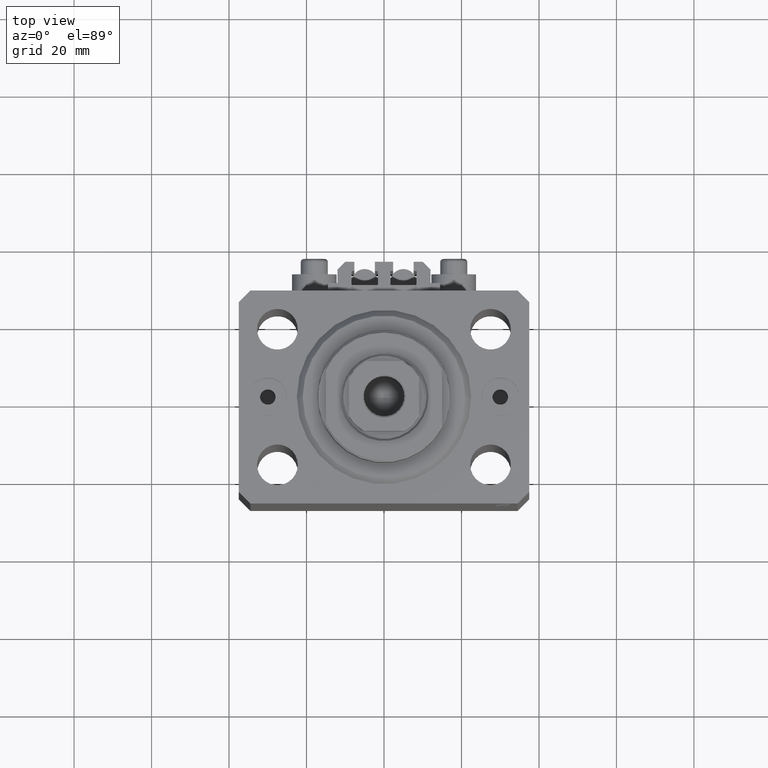
[diagram: clean part render]
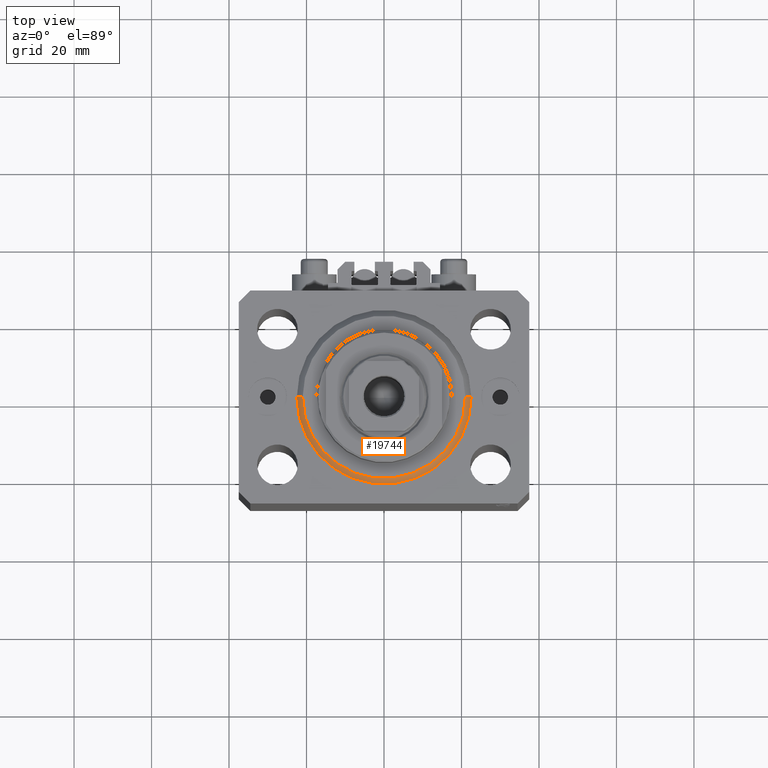
[diagram: same view with one face highlighted and labeled with its STEP entity id]
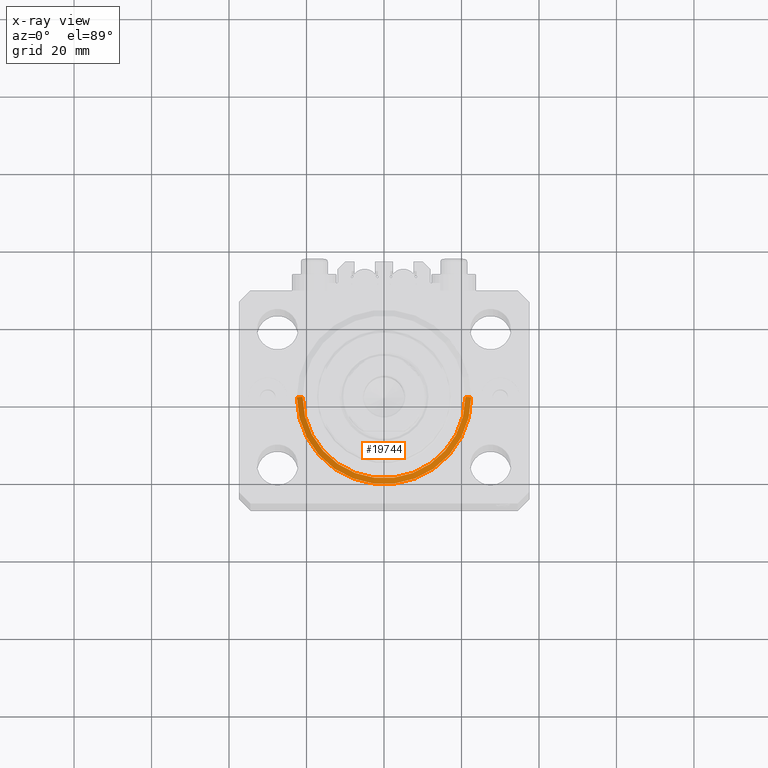
[diagram: x-ray of the same camera — body ghosted, the highlighted face saturated]
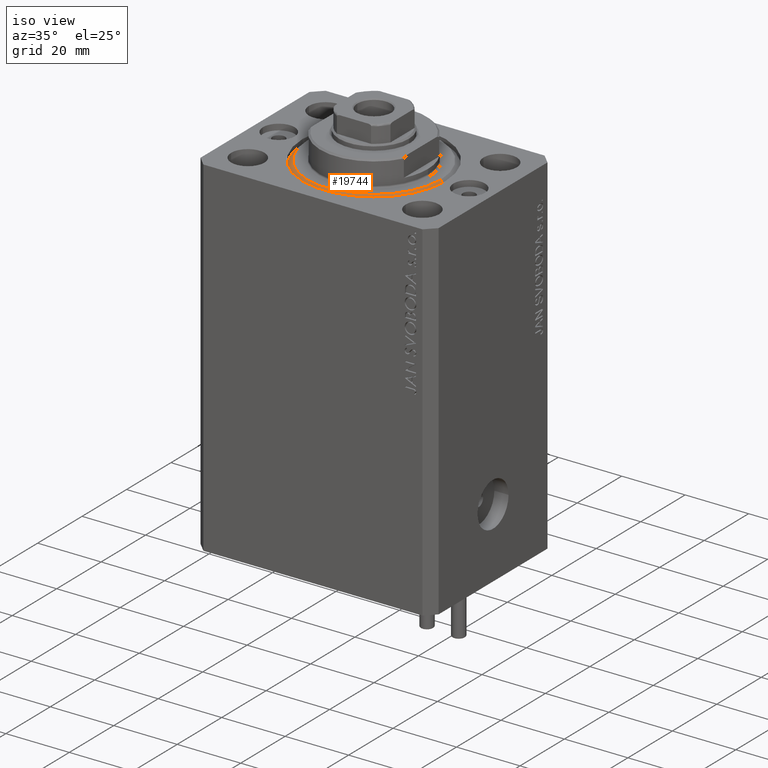
[diagram: same view with one face highlighted and labeled with its STEP entity id]
A machine part, top view. The second image highlights one B-rep face of the part: STEP entity #19744.
The next image is the same camera in x-ray: the body ghosted, the highlighted face saturated — about 0% of this face is hidden behind the body in this view.
A second angle (iso view) of the same face is appended — the face is thin or edge-on in the first view.
In plain terms, the highlighted conical surface has half-angle 45 deg.
Its self-contained STEP definition (entity closure, byte-faithful):
#1539 = EDGE_CURVE ( 'NONE', #19891, #42407, #19222, .T. ) ;
#2144 = LINE ( 'NONE', #26975, #43958 ) ;
#5029 = VECTOR ( 'NONE', #20184, 1000.000000000000114 ) ;
#5433 = CARTESIAN_POINT ( 'NONE',  ( 0.000000000000000000, 0.000000000000000000, 0.000000000000000000 ) ) ;
#5634 = CARTESIAN_POINT ( 'NONE',  ( 22.50000000000000355, 0.000000000000000000, 1.500000000000001332 ) ) ;
#5673 = DIRECTION ( 'NONE',  ( -0.000000000000000000, -0.000000000000000000, -1.000000000000000000 ) ) ;
#6352 = ORIENTED_EDGE ( 'NONE', *, *, #40785, .T. ) ;
#6477 = DIRECTION ( 'NONE',  ( -0.000000000000000000, -0.000000000000000000, 1.000000000000000000 ) ) ;
#7365 = ORIENTED_EDGE ( 'NONE', *, *, #19921, .F. ) ;
#9272 = DIRECTION ( 'NONE',  ( 1.000000000000000000, 0.000000000000000000, 0.000000000000000000 ) ) ;
#11255 = VERTEX_POINT ( 'NONE', #39110 ) ;
#12054 = CONICAL_SURFACE ( 'NONE', #22117, 22.50000000000000355, 0.7853981633974517207 ) ;
#17432 = CIRCLE ( 'NONE', #36053, 20.99999999999998934 ) ;
#17652 = DIRECTION ( 'NONE',  ( 1.000000000000000000, 0.000000000000000000, 0.000000000000000000 ) ) ;
#19222 = CIRCLE ( 'NONE', #46376, 22.50000000000000355 ) ;
#19744 = ADVANCED_FACE ( 'NONE', ( #27836 ), #12054, .T. ) ;
#19891 = VERTEX_POINT ( 'NONE', #38468 ) ;
#19921 = EDGE_CURVE ( 'NONE', #11255, #42986, #17432, .T. ) ;
#20184 = DIRECTION ( 'NONE',  ( 0.7071067811865500152, 0.000000000000000000, 0.7071067811865451302 ) ) ;
#20219 = DIRECTION ( 'NONE',  ( 1.000000000000000000, 0.000000000000000000, 0.000000000000000000 ) ) ;
#21481 = EDGE_LOOP ( 'NONE', ( #21730, #7365, #6352, #40860 ) ) ;
#21730 = ORIENTED_EDGE ( 'NONE', *, *, #43654, .F. ) ;
#21890 = CARTESIAN_POINT ( 'NONE',  ( 22.50000000000000355, 2.755455298081545172E-15, 1.500000000000001332 ) ) ;
#22117 = AXIS2_PLACEMENT_3D ( 'NONE', #39748, #6477, #17652 ) ;
#26975 = CARTESIAN_POINT ( 'NONE',  ( -22.50000000000000355, 2.755455298081545172E-15, 1.500000000000001332 ) ) ;
#27226 = CARTESIAN_POINT ( 'NONE',  ( 0.000000000000000000, 0.000000000000000000, 1.500000000000001332 ) ) ;
#27836 = FACE_OUTER_BOUND ( 'NONE', #21481, .T. ) ;
#27955 = LINE ( 'NONE', #5634, #5029 ) ;
#30626 = DIRECTION ( 'NONE',  ( -0.7071067811865500152, 8.659560562354963673E-17, 0.7071067811865451302 ) ) ;
#36053 = AXIS2_PLACEMENT_3D ( 'NONE', #5433, #5673, #20219 ) ;
#38468 = CARTESIAN_POINT ( 'NONE',  ( -22.50000000000000355, 0.000000000000000000, 1.500000000000001332 ) ) ;
#39110 = CARTESIAN_POINT ( 'NONE',  ( 20.99999999999998934, 0.000000000000000000, 0.000000000000000000 ) ) ;
#39748 = CARTESIAN_POINT ( 'NONE',  ( 0.000000000000000000, 0.000000000000000000, 1.500000000000001332 ) ) ;
#39764 = CARTESIAN_POINT ( 'NONE',  ( -20.99999999999998934, 2.663606788145492628E-15, 0.000000000000000000 ) ) ;
#40785 = EDGE_CURVE ( 'NONE', #11255, #42407, #27955, .T. ) ;
#40860 = ORIENTED_EDGE ( 'NONE', *, *, #1539, .F. ) ;
#41831 = DIRECTION ( 'NONE',  ( -0.000000000000000000, -0.000000000000000000, 1.000000000000000000 ) ) ;
#42407 = VERTEX_POINT ( 'NONE', #21890 ) ;
#42986 = VERTEX_POINT ( 'NONE', #39764 ) ;
#43654 = EDGE_CURVE ( 'NONE', #42986, #19891, #2144, .T. ) ;
#43958 = VECTOR ( 'NONE', #30626, 1000.000000000000114 ) ;
#46376 = AXIS2_PLACEMENT_3D ( 'NONE', #27226, #41831, #9272 ) ;